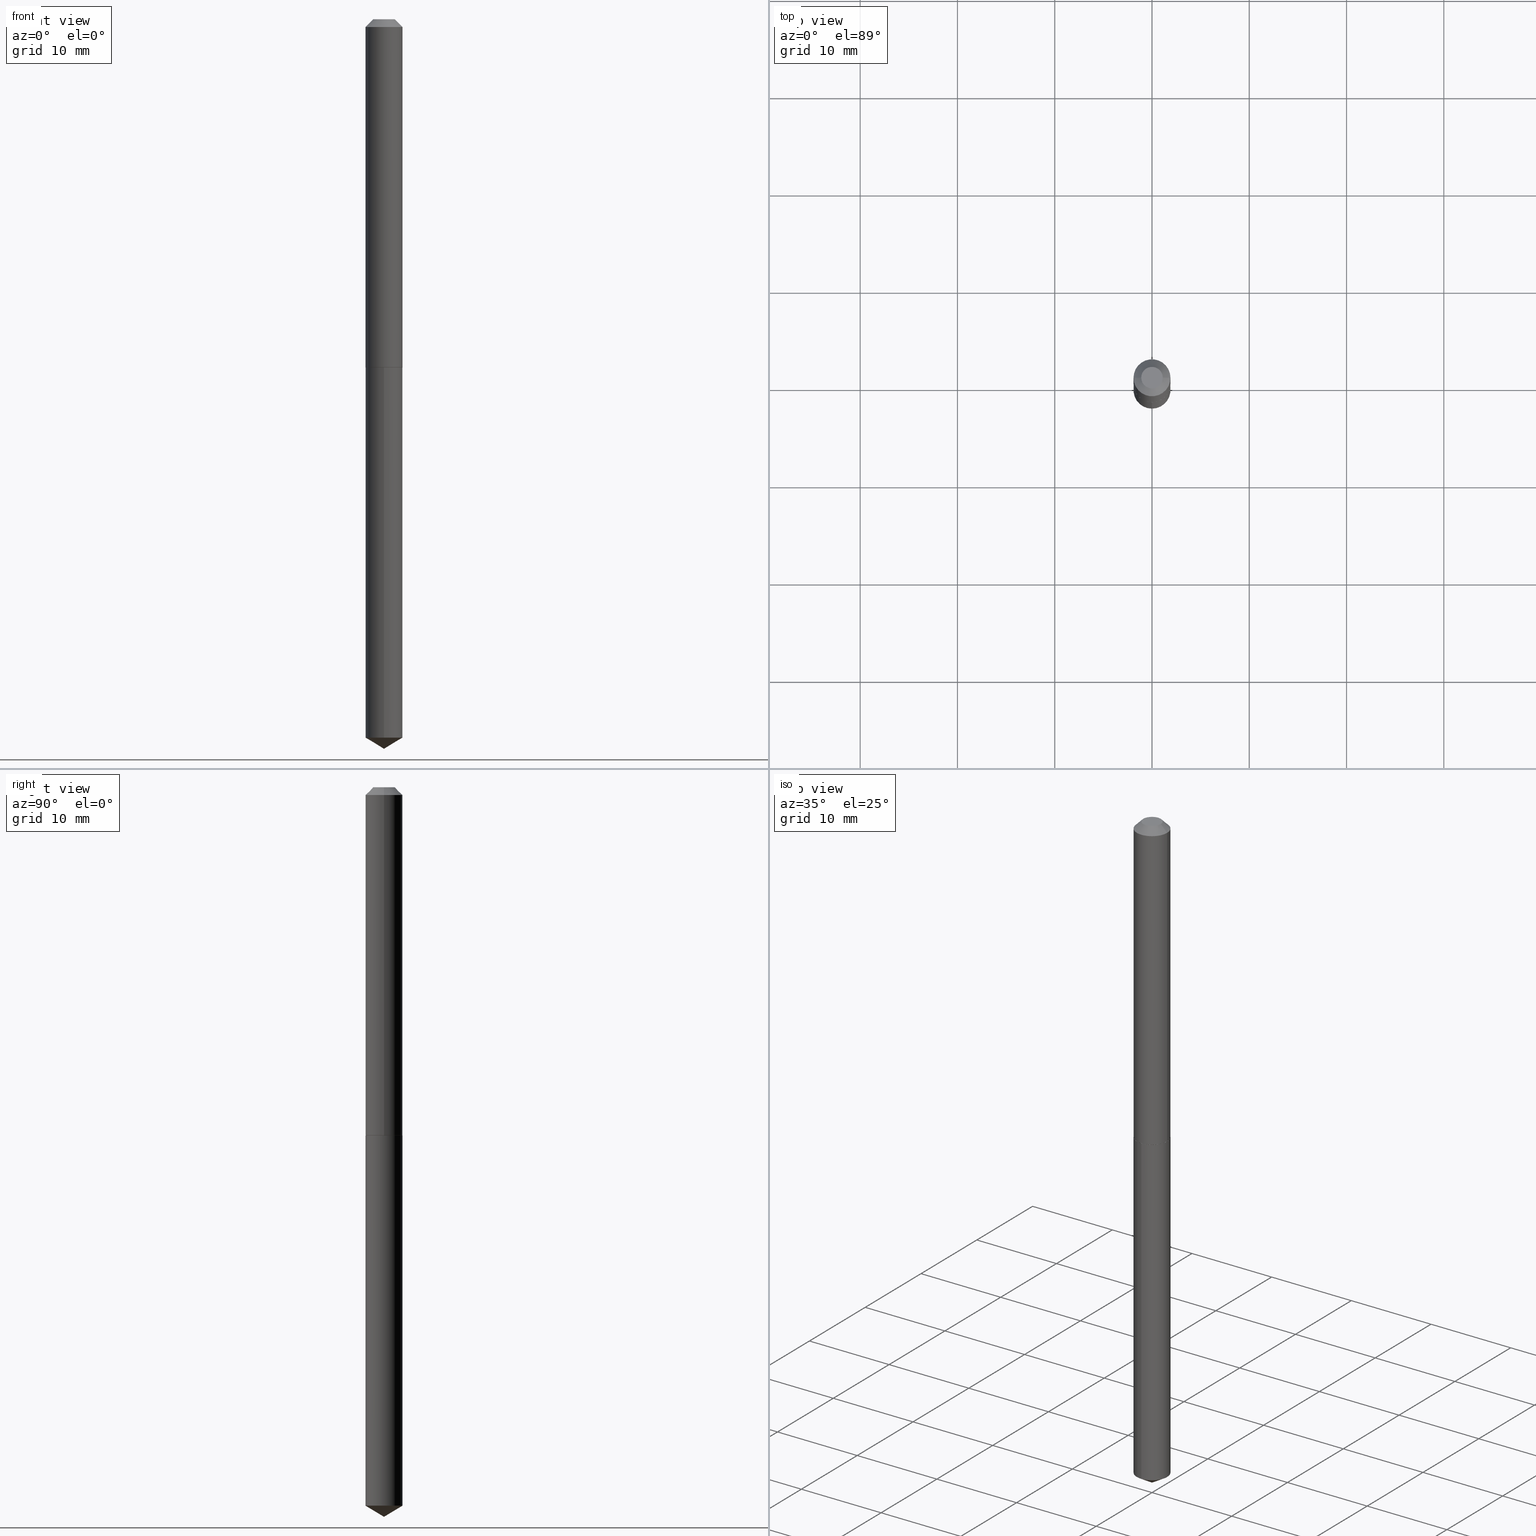
[diagram: canonical four-view strip — front | top / right | iso, engineering-drawing reading convention]
A machine part, canonical four-view strip (front | top / right | iso — engineering-drawing reading convention). The complete STEP part file that produces these views, byte-faithful:
ISO-10303-21;
HEADER;
FILE_DESCRIPTION (( 'STEP AP203' ),
    '1' );
FILE_NAME ('68316.STEP',
    '2024-04-23T13:04:07',
    ( '' ),
    ( '' ),
    'SwSTEP 2.0',
    'SolidWorks 2023',
    '' );
FILE_SCHEMA (( 'CONFIG_CONTROL_DESIGN' ));
ENDSEC;

DATA;
#1 = AXIS2_PLACEMENT_3D ( 'NONE', #231, #337, #36 ) ;
#2 = DIRECTION ( 'NONE',  ( 1.000000000000000000, -6.982962677686261189E-15, 0.000000000000000000 ) ) ;
#3 = CALENDAR_DATE ( 2024, 23, 4 ) ;
#4 = CC_DESIGN_PERSON_AND_ORGANIZATION_ASSIGNMENT ( #336, #65, ( #122 ) ) ;
#5 = APPROVAL_DATE_TIME ( #287, #225 ) ;
#6 = DIRECTION ( 'NONE',  ( -2.438088387897960049E-29, 3.491481338843145188E-15, 1.000000000000000000 ) ) ;
#7 = AXIS2_PLACEMENT_3D ( 'NONE', #224, #59, #183 ) ;
#8 = CARTESIAN_POINT ( 'NONE',  ( -5.839929314523175409E-48, 8.337871319499082469E-34, 2.388061258337334140E-19 ) ) ;
#9 = PERSON_AND_ORGANIZATION ( #260, #90 ) ;
#10 = DIRECTION ( 'NONE',  ( -2.445411313727211212E-29, 3.491563671315162485E-15, 1.000000000000000000 ) ) ;
#11 = DIRECTION ( 'NONE',  ( -6.982962677686265133E-15, -1.000000000000000000, 3.468864327941649829E-15 ) ) ;
#12 = AXIS2_PLACEMENT_3D ( 'NONE', #269, #222, #110 ) ;
#13 = EDGE_CURVE ( 'NONE', #242, #303, #137, .T. ) ;
#14 = EDGE_LOOP ( 'NONE', ( #376, #88, #118, #216 ) ) ;
#15 = CONICAL_SURFACE ( 'NONE', #12, 0.07480000000000018578, 0.7853981633971067744 ) ;
#16 = ADVANCED_FACE ( 'NONE', ( #292 ), #373, .T. ) ;
#17 = ORIENTED_EDGE ( 'NONE', *, *, #33, .T. ) ;
#18 = CARTESIAN_POINT ( 'NONE',  ( 0.000000000000000000, 0.000000000000000000, 0.000000000000000000 ) ) ;
#19 = EDGE_LOOP ( 'NONE', ( #299, #17, #344 ) ) ;
#20 = APPROVAL_ROLE ( '' ) ;
#21 = DIRECTION ( 'NONE',  ( -0.7071067811865452413, 2.468850131082233000E-15, -0.7071067811865497932 ) ) ;
#22 = VECTOR ( 'NONE', #21, 39.37007874015748143 ) ;
#23 = EDGE_LOOP ( 'NONE', ( #106, #44 ) ) ;
#24 = ADVANCED_FACE ( 'NONE', ( #259 ), #161, .T. ) ;
#25 = LINE ( 'NONE', #302, #331 ) ;
#26 = CARTESIAN_POINT ( 'NONE',  ( 0.07480000000000010252, -5.223256082909333921E-16, 3.647380228295364368E-30 ) ) ;
#27 = AXIS2_PLACEMENT_3D ( 'NONE', #289, #10, #11 ) ;
#28 = ADVANCED_FACE ( 'NONE', ( #165 ), #205, .T. ) ;
#29 = CONICAL_SURFACE ( 'NONE', #362, 0.07480000000000000537, 0.7853981633974450594 ) ;
#30 = SECURITY_CLASSIFICATION ( '', '', #194 ) ;
#31 = CARTESIAN_POINT ( 'NONE',  ( 7.642090019328601786E-31, -1.091087918388490144E-16, -0.03125000000000020123 ) ) ;
#32 = CARTESIAN_POINT ( 'NONE',  ( 7.110984081383565848E-29, -1.015284701649284259E-14, -2.907855625696737611 ) ) ;
#33 = EDGE_CURVE ( 'NONE', #149, #239, #335, .T. ) ;
#34 = CIRCLE ( 'NONE', #342, 0.07480000000000000537 ) ;
#35 = DIRECTION ( 'NONE',  ( -6.982962677686265922E-15, -1.000000000000000000, 3.652203200085913145E-15 ) ) ;
#36 = DIRECTION ( 'NONE',  ( -1.000000000000000000, 6.982962677686265922E-15, -4.876176775795935793E-29 ) ) ;
#37 = VERTEX_POINT ( 'NONE', #282 ) ;
#38 = ADVANCED_BREP_SHAPE_REPRESENTATION ( '68316', ( #136, #276, #221 ), #280 ) ;
#39 = APPROVAL ( #278, 'UNSPECIFIED' ) ;
#40 = CARTESIAN_POINT ( 'NONE',  ( 0.000000000000000000, 0.000000000000000000, 0.000000000000000000 ) ) ;
#41 = DIRECTION ( 'NONE',  ( -2.445468806185136597E-29, 3.491481338843145583E-15, 1.000000000000000000 ) ) ;
#42 = ADVANCED_FACE ( 'NONE', ( #365 ), #270, .T. ) ;
#43 = CIRCLE ( 'NONE', #317, 0.07480000000000018578 ) ;
#44 = ORIENTED_EDGE ( 'NONE', *, *, #354, .T. ) ;
#45 = EDGE_CURVE ( 'NONE', #303, #171, #43, .T. ) ;
#46 = DIRECTION ( 'NONE',  ( 1.000000000000000000, -6.982962677686271444E-15, 0.000000000000000000 ) ) ;
#47 = VERTEX_POINT ( 'NONE', #235 ) ;
#48 = CARTESIAN_POINT ( 'NONE',  ( -5.223256082908981892E-16, -0.07480000000000491811, -1.409499999999999309 ) ) ;
#49 =( NAMED_UNIT ( * ) PLANE_ANGLE_UNIT ( ) SI_UNIT ( $, .RADIAN. ) );
#50 = ORIENTED_EDGE ( 'NONE', *, *, #13, .F. ) ;
#51 = DIRECTION ( 'NONE',  ( -2.445468806185136877E-29, 3.491481338843145188E-15, 1.000000000000000000 ) ) ;
#52 = CARTESIAN_POINT ( 'NONE',  ( 0.07480000000000000537, -6.314344001297818025E-16, -0.03125000000000020123 ) ) ;
#53 = CARTESIAN_POINT ( 'NONE',  ( -5.223256082908615071E-16, -0.07480000000001012228, -2.907855625696737611 ) ) ;
#54 = EDGE_LOOP ( 'NONE', ( #151, #266, #79, #50 ) ) ;
#55 = DIRECTION ( 'NONE',  ( -2.445411313727211212E-29, 3.491563671315162485E-15, 1.000000000000000000 ) ) ;
#56 = CARTESIAN_POINT ( 'NONE',  ( 3.446888282317949867E-29, -4.921242947099413409E-15, -1.409499999999999753 ) ) ;
#57 = PERSON_AND_ORGANIZATION ( #260, #90 ) ;
#58 = CARTESIAN_POINT ( 'NONE',  ( 0.07430000000000035187, -5.440077074051504780E-15, -1.409499999999999753 ) ) ;
#59 = DIRECTION ( 'NONE',  ( 2.445411313727210371E-29, -3.491563671315162879E-15, -1.000000000000000000 ) ) ;
#60 = ADVANCED_FACE ( 'NONE', ( #134 ), #284, .F. ) ;
#61 = EDGE_LOOP ( 'NONE', ( #326, #267, #208 ) ) ;
#62 = CIRCLE ( 'NONE', #306, 0.07480000000000000537 ) ;
#63 = CARTESIAN_POINT ( 'NONE',  ( -5.223256082908982878E-16, -0.07480000000000491811, -1.409499999999999309 ) ) ;
#64 = DIRECTION ( 'NONE',  ( 1.000000000000000000, -6.982962677686261189E-15, 0.000000000000000000 ) ) ;
#65 = PERSON_AND_ORGANIZATION_ROLE ( 'creator' ) ;
#66 = DIRECTION ( 'NONE',  ( 1.000000000000000000, -6.982962677686265922E-15, 4.876176775795935232E-29 ) ) ;
#67 = PERSON_AND_ORGANIZATION_ROLE ( 'design_supplier' ) ;
#68 = ORIENTED_EDGE ( 'NONE', *, *, #95, .F. ) ;
#69 = LOCAL_TIME ( 9, 4, 7.000000000000000000, #339 ) ;
#70 = CARTESIAN_POINT ( 'NONE',  ( 0.07480000000000018578, -5.441822814720925495E-15, -1.408999999999999586 ) ) ;
#71 = CALENDAR_DATE ( 2024, 23, 4 ) ;
#72 = DIRECTION ( 'NONE',  ( 1.000000000000000000, -6.982962677686265922E-15, 4.876176775795935232E-29 ) ) ;
#73 = APPROVAL ( #159, 'UNSPECIFIED' ) ;
#74 = DIRECTION ( 'NONE',  ( 1.000000000000000000, -6.982962677686271444E-15, 0.000000000000000000 ) ) ;
#75 = PERSON_AND_ORGANIZATION_ROLE ( 'classification_officer' ) ;
#76 = VECTOR ( 'NONE', #308, 39.37007874015748143 ) ;
#77 = ADVANCED_FACE ( 'NONE', ( #131 ), #363, .T. ) ;
#78 = ORIENTED_EDGE ( 'NONE', *, *, #229, .F. ) ;
#79 = ORIENTED_EDGE ( 'NONE', *, *, #45, .F. ) ;
#80 = VECTOR ( 'NONE', #84, 39.37007874015748854 ) ;
#81 = DIRECTION ( 'NONE',  ( 2.445468806185136597E-29, -3.491481338843145583E-15, -1.000000000000000000 ) ) ;
#82 = CC_DESIGN_APPROVAL ( #39, ( #30 ) ) ;
#83 = EDGE_LOOP ( 'NONE', ( #219, #356, #347, #142 ) ) ;
#84 = DIRECTION ( 'NONE',  ( -5.985567269335916825E-15, -0.8571673007021067825, 0.5150380749100631483 ) ) ;
#85 = DATE_AND_TIME ( #112, #334 ) ;
#86 = CC_DESIGN_DATE_AND_TIME_ASSIGNMENT ( #381, #220, ( #30 ) ) ;
#87 = DIRECTION ( 'NONE',  ( -2.445468806185136597E-29, 3.491481338843145583E-15, 1.000000000000000000 ) ) ;
#88 = ORIENTED_EDGE ( 'NONE', *, *, #132, .T. ) ;
#89 = APPLICATION_CONTEXT ( 'configuration controlled 3d designs of mechanical parts and assemblies' ) ;
#90 = ORGANIZATION ( 'UNSPECIFIED', 'UNSPECIFIED', '' ) ;
#91 = CARTESIAN_POINT ( 'NONE',  ( 5.314859663485892927E-16, 0.07479999999999507876, -1.409499999999999753 ) ) ;
#92 = AXIS2_PLACEMENT_3D ( 'NONE', #31, #96, #158 ) ;
#93 = CARTESIAN_POINT ( 'NONE',  ( 3.446888282317949867E-29, -4.921242947099413409E-15, -1.409499999999999753 ) ) ;
#94 = DATE_AND_TIME ( #258, #209 ) ;
#95 = EDGE_CURVE ( 'NONE', #170, #242, #127, .T. ) ;
#96 = DIRECTION ( 'NONE',  ( 2.445468806185136597E-29, -3.491481338843145583E-15, -1.000000000000000000 ) ) ;
#97 = APPROVAL_STATUS ( 'not_yet_approved' ) ;
#98 = VECTOR ( 'NONE', #169, 39.37007874015748143 ) ;
#99 = VECTOR ( 'NONE', #371, 39.37007874015748143 ) ;
#100 = AXIS2_PLACEMENT_3D ( 'NONE', #154, #277, #388 ) ;
#101 = CARTESIAN_POINT ( 'NONE',  ( 3.446888282317949307E-29, -4.921242947099412620E-15, -1.409499999999999531 ) ) ;
#102 = EDGE_CURVE ( 'NONE', #109, #245, #34, .T. ) ;
#103 = LOCAL_TIME ( 9, 4, 7.000000000000000000, #223 ) ;
#104 = LINE ( 'NONE', #290, #99 ) ;
#105 = CARTESIAN_POINT ( 'NONE',  ( 3.446888282317949307E-29, -4.921242947099412620E-15, -1.409499999999999531 ) ) ;
#106 = ORIENTED_EDGE ( 'NONE', *, *, #153, .T. ) ;
#107 = VERTEX_POINT ( 'NONE', #262 ) ;
#108 = FACE_OUTER_BOUND ( 'NONE', #83, .T. ) ;
#109 = VERTEX_POINT ( 'NONE', #63 ) ;
#110 = DIRECTION ( 'NONE',  ( 1.000000000000000000, -6.982962677686271444E-15, 0.000000000000000000 ) ) ;
#111 = EDGE_CURVE ( 'NONE', #171, #47, #234, .T. ) ;
#112 = CALENDAR_DATE ( 2024, 23, 4 ) ;
#113 = AXIS2_PLACEMENT_3D ( 'NONE', #32, #285, #307 ) ;
#114 =( NAMED_UNIT ( * ) SI_UNIT ( $, .STERADIAN. ) SOLID_ANGLE_UNIT ( ) );
#115 = ORIENTED_EDGE ( 'NONE', *, *, #45, .T. ) ;
#116 = FACE_OUTER_BOUND ( 'NONE', #54, .T. ) ;
#117 = FACE_OUTER_BOUND ( 'NONE', #143, .T. ) ;
#118 = ORIENTED_EDGE ( 'NONE', *, *, #229, .T. ) ;
#119 = PLANE ( 'NONE',  #1 ) ;
#120 = EDGE_CURVE ( 'NONE', #246, #47, #62, .T. ) ;
#121 = VECTOR ( 'NONE', #51, 39.37007874015748143 ) ;
#122 = PRODUCT_DEFINITION_FORMATION_WITH_SPECIFIED_SOURCE ( 'ANY', '', #385, .NOT_KNOWN. ) ;
#123 = DESIGN_CONTEXT ( 'detailed design', #89, 'design' ) ;
#124 = DATE_AND_TIME ( #315, #69 ) ;
#125 = DIRECTION ( 'NONE',  ( -2.445468806185136597E-29, 3.491481338843145583E-15, 1.000000000000000000 ) ) ;
#126 = APPROVAL_ROLE ( '' ) ;
#127 = CIRCLE ( 'NONE', #241, 0.07430000000000035187 ) ;
#128 = DIRECTION ( 'NONE',  ( -2.445468806185136597E-29, 3.491481338843145583E-15, 1.000000000000000000 ) ) ;
#129 = PERSON_AND_ORGANIZATION ( #260, #90 ) ;
#130 = APPLICATION_PROTOCOL_DEFINITION ( 'international standard', 'config_control_design', 1994, #89 ) ;
#131 = FACE_OUTER_BOUND ( 'NONE', #179, .T. ) ;
#132 = EDGE_CURVE ( 'NONE', #239, #296, #368, .T. ) ;
#133 = CARTESIAN_POINT ( 'NONE',  ( 0.000000000000000000, 0.000000000000000000, 0.000000000000000000 ) ) ;
#134 = FACE_OUTER_BOUND ( 'NONE', #139, .T. ) ;
#135 = MECHANICAL_CONTEXT ( 'NONE', #355, 'mechanical' ) ;
#136 = MANIFOLD_SOLID_BREP ( 'Body-Move/Copy2[1]', #254 ) ;
#137 = LINE ( 'NONE', #70, #98 ) ;
#138 = DIMENSIONAL_EXPONENTS ( 1.000000000000000000, 0.000000000000000000, 0.000000000000000000, 0.000000000000000000, 0.000000000000000000, 0.000000000000000000, 0.000000000000000000 ) ;
#139 = EDGE_LOOP ( 'NONE', ( #196, #68 ) ) ;
#140 = AXIS2_PLACEMENT_3D ( 'NONE', #150, #55, #352 ) ;
#141 = FACE_OUTER_BOUND ( 'NONE', #323, .T. ) ;
#142 = ORIENTED_EDGE ( 'NONE', *, *, #188, .F. ) ;
#143 = EDGE_LOOP ( 'NONE', ( #166, #350, #305, #148 ) ) ;
#144 = CARTESIAN_POINT ( 'NONE',  ( -0.07480000000000000537, 4.132168164520837491E-16, -0.03125000000000020123 ) ) ;
#145 = CC_DESIGN_PERSON_AND_ORGANIZATION_ASSIGNMENT ( #9, #199, ( #346 ) ) ;
#146 = DIRECTION ( 'NONE',  ( -2.445468806185136597E-29, 3.491481338843145583E-15, 1.000000000000000000 ) ) ;
#147 = CARTESIAN_POINT ( 'NONE',  ( 7.642090019328601786E-31, -1.091087918388490144E-16, -0.03125000000000020123 ) ) ;
#148 = ORIENTED_EDGE ( 'NONE', *, *, #263, .T. ) ;
#149 = VERTEX_POINT ( 'NONE', #252 ) ;
#150 = CARTESIAN_POINT ( 'NONE',  ( 3.446888282317949307E-29, -4.921242947099412620E-15, -1.409499999999999531 ) ) ;
#151 = ORIENTED_EDGE ( 'NONE', *, *, #293, .T. ) ;
#152 = CYLINDRICAL_SURFACE ( 'NONE', #100, 0.07479999999999999150 ) ;
#153 = EDGE_CURVE ( 'NONE', #37, #107, #349, .T. ) ;
#154 = CARTESIAN_POINT ( 'NONE',  ( 3.446888282317949307E-29, -4.921242947099412620E-15, -1.409499999999999531 ) ) ;
#155 = AXIS2_PLACEMENT_3D ( 'NONE', #163, #264, #286 ) ;
#156 = AXIS2_PLACEMENT_3D ( 'NONE', #274, #87, #377 ) ;
#157 = CC_DESIGN_PERSON_AND_ORGANIZATION_ASSIGNMENT ( #311, #75, ( #30 ) ) ;
#158 = DIRECTION ( 'NONE',  ( -1.000000000000000000, 6.982962677686266711E-15, 0.000000000000000000 ) ) ;
#159 = APPROVAL_STATUS ( 'not_yet_approved' ) ;
#160 = CARTESIAN_POINT ( 'NONE',  ( 3.445665547914856505E-29, -4.919497206429991117E-15, -1.408999999999999586 ) ) ;
#161 = CYLINDRICAL_SURFACE ( 'NONE', #382, 0.07480000000000010252 ) ;
#162 = DIRECTION ( 'NONE',  ( 6.090539988449753981E-15, 0.8571673007021103352, 0.5150380749100572642 ) ) ;
#163 = CARTESIAN_POINT ( 'NONE',  ( -8.905514441071909867E-28, 1.271533635049111924E-13, 36.41727874015747801 ) ) ;
#164 = ADVANCED_FACE ( 'NONE', ( #108 ), #207, .T. ) ;
#165 = FACE_OUTER_BOUND ( 'NONE', #61, .T. ) ;
#166 = ORIENTED_EDGE ( 'NONE', *, *, #173, .F. ) ;
#167 = DIRECTION ( 'NONE',  ( 1.000000000000000000, -6.982962677686265922E-15, 4.876176775795935793E-29 ) ) ;
#168 = AXIS2_PLACEMENT_3D ( 'NONE', #291, #320, #46 ) ;
#169 = DIRECTION ( 'NONE',  ( 0.7071067811863059882, -2.468850131079726789E-15, 0.7071067811867890462 ) ) ;
#170 = VERTEX_POINT ( 'NONE', #203 ) ;
#171 = VERTEX_POINT ( 'NONE', #200 ) ;
#172 = CIRCLE ( 'NONE', #168, 0.07480000000000018578 ) ;
#173 = EDGE_CURVE ( 'NONE', #107, #246, #104, .T. ) ;
#174 =( LENGTH_UNIT ( ) NAMED_UNIT ( * ) SI_UNIT ( $, .METRE. ) );
#175 = ORIENTED_EDGE ( 'NONE', *, *, #366, .T. ) ;
#176 = CARTESIAN_POINT ( 'NONE',  ( -5.839929314523175409E-48, 8.337871319499082469E-34, 2.388061258337334140E-19 ) ) ;
#177 = ORIENTED_EDGE ( 'NONE', *, *, #111, .F. ) ;
#178 = LINE ( 'NONE', #144, #22 ) ;
#179 = EDGE_LOOP ( 'NONE', ( #115, #294, #386, #384 ) ) ;
#180 = DIRECTION ( 'NONE',  ( -6.982962677686265922E-15, -1.000000000000000000, 3.652203200085913145E-15 ) ) ;
#181 = LENGTH_MEASURE_WITH_UNIT ( LENGTH_MEASURE( 0.02539999999999999897 ), #174 );
#182 = ORIENTED_EDGE ( 'NONE', *, *, #313, .T. ) ;
#183 = DIRECTION ( 'NONE',  ( 6.982962677686265922E-15, 1.000000000000000000, -3.491563671315162879E-15 ) ) ;
#184 = VECTOR ( 'NONE', #191, 39.37007874015748143 ) ;
#185 = DIRECTION ( 'NONE',  ( -0.7071067811863059882, 7.493145998869481680E-15, 0.7071067811867890462 ) ) ;
#186 = DIRECTION ( 'NONE',  ( -2.445468806185136597E-29, 3.491481338843145583E-15, 1.000000000000000000 ) ) ;
#187 = AXIS2_PLACEMENT_3D ( 'NONE', #212, #327, #300 ) ;
#188 = EDGE_CURVE ( 'NONE', #171, #303, #172, .T. ) ;
#189 = CARTESIAN_POINT ( 'NONE',  ( -0.07480000000000010252, 5.314859663485556675E-16, -3.679363447510674285E-30 ) ) ;
#190 = PERSON_AND_ORGANIZATION ( #260, #90 ) ;
#191 = DIRECTION ( 'NONE',  ( -2.445468806185136877E-29, 3.491481338843145188E-15, 1.000000000000000000 ) ) ;
#192 = CARTESIAN_POINT ( 'NONE',  ( 7.220974019586055453E-29, -1.030965711342079523E-14, -2.952799999999999869 ) ) ;
#193 = ADVANCED_FACE ( 'NONE', ( #141 ), #324, .T. ) ;
#194 = SECURITY_CLASSIFICATION_LEVEL ( 'unclassified' ) ;
#195 = DIRECTION ( 'NONE',  ( 1.000000000000000000, 0.000000000000000000, 0.000000000000000000 ) ) ;
#196 = ORIENTED_EDGE ( 'NONE', *, *, #293, .F. ) ;
#197 = AXIS2_PLACEMENT_3D ( 'NONE', #176, #146, #351 ) ;
#198 = CARTESIAN_POINT ( 'NONE',  ( 7.642090019328601786E-31, -1.091087918388490144E-16, -0.03125000000000020123 ) ) ;
#199 = PERSON_AND_ORGANIZATION_ROLE ( 'creator' ) ;
#200 = CARTESIAN_POINT ( 'NONE',  ( -0.07480000000000018578, -4.388011240081434759E-15, -1.408999999999999586 ) ) ;
#201 = AXIS2_PLACEMENT_3D ( 'NONE', #230, #6, #167 ) ;
#202 = ORIENTED_EDGE ( 'NONE', *, *, #173, .T. ) ;
#203 = CARTESIAN_POINT ( 'NONE',  ( -0.07430000000000035187, -4.390660467255545171E-15, -1.409499999999999753 ) ) ;
#204 = ADVANCED_FACE ( 'NONE', ( #117 ), #29, .T. ) ;
#205 = CONICAL_SURFACE ( 'NONE', #27, 65.52281426576737999, 1.029744258676647428 ) ;
#206 =( CONVERSION_BASED_UNIT ( 'INCH', #181 ) LENGTH_UNIT ( ) NAMED_UNIT ( #138 ) );
#207 = CONICAL_SURFACE ( 'NONE', #226, 0.07480000000000018578, 0.7853981633971067744 ) ;
#208 = ORIENTED_EDGE ( 'NONE', *, *, #132, .F. ) ;
#209 = LOCAL_TIME ( 9, 4, 7.000000000000000000, #253 ) ;
#210 = DIRECTION ( 'NONE',  ( -2.445411313727211212E-29, 3.491563671315162485E-15, 1.000000000000000000 ) ) ;
#211 = ORIENTED_EDGE ( 'NONE', *, *, #188, .T. ) ;
#212 = CARTESIAN_POINT ( 'NONE',  ( 7.110984081383565848E-29, -1.015284701649284259E-14, -2.907855625696737611 ) ) ;
#213 = APPROVAL_DATE_TIME ( #85, #39 ) ;
#214 = ORIENTED_EDGE ( 'NONE', *, *, #102, .F. ) ;
#215 = LINE ( 'NONE', #48, #340 ) ;
#216 = ORIENTED_EDGE ( 'NONE', *, *, #218, .F. ) ;
#217 = CARTESIAN_POINT ( 'NONE',  ( 7.220810527173708163E-29, -1.030988920865940832E-14, -2.952799999999999869 ) ) ;
#218 = EDGE_CURVE ( 'NONE', #245, #109, #261, .T. ) ;
#219 = ORIENTED_EDGE ( 'NONE', *, *, #238, .F. ) ;
#220 = DATE_TIME_ROLE ( 'classification_date' ) ;
#221 = AXIS2_PLACEMENT_3D ( 'NONE', #18, #333, #195 ) ;
#222 = DIRECTION ( 'NONE',  ( -2.445468806185136597E-29, 3.491481338843145583E-15, 1.000000000000000000 ) ) ;
#223 = COORDINATED_UNIVERSAL_TIME_OFFSET ( 5, 0, .BEHIND. ) ;
#224 = CARTESIAN_POINT ( 'NONE',  ( 3.446888282317949307E-29, -4.921242947099412620E-15, -1.409499999999999531 ) ) ;
#225 = APPROVAL ( #97, 'UNSPECIFIED' ) ;
#226 = AXIS2_PLACEMENT_3D ( 'NONE', #343, #319, #74 ) ;
#227 = DIRECTION ( 'NONE',  ( -2.445468806185136597E-29, 3.491481338843145583E-15, 1.000000000000000000 ) ) ;
#228 = APPROVAL_DATE_TIME ( #94, #73 ) ;
#229 = EDGE_CURVE ( 'NONE', #296, #109, #215, .T. ) ;
#230 = CARTESIAN_POINT ( 'NONE',  ( 3.446888282317949867E-29, -4.921242947099413409E-15, -1.409499999999999753 ) ) ;
#231 = CARTESIAN_POINT ( 'NONE',  ( -2.919964657261587705E-48, 4.168935659749541235E-34, 1.194030629168667070E-19 ) ) ;
#232 = COORDINATED_UNIVERSAL_TIME_OFFSET ( 5, 0, .BEHIND. ) ;
#233 = AXIS2_PLACEMENT_3D ( 'NONE', #56, #186, #2 ) ;
#234 = LINE ( 'NONE', #189, #184 ) ;
#235 = CARTESIAN_POINT ( 'NONE',  ( -0.07480000000000000537, -1.982817032785863356E-15, -0.03125000000000020123 ) ) ;
#236 = CC_DESIGN_DATE_AND_TIME_ASSIGNMENT ( #124, #359, ( #346 ) ) ;
#237 = CIRCLE ( 'NONE', #197, 0.04355000000000000537 ) ;
#238 = EDGE_CURVE ( 'NONE', #170, #171, #25, .T. ) ;
#239 = VERTEX_POINT ( 'NONE', #329 ) ;
#240 = ORIENTED_EDGE ( 'NONE', *, *, #249, .F. ) ;
#241 = AXIS2_PLACEMENT_3D ( 'NONE', #93, #227, #64 ) ;
#242 = VERTEX_POINT ( 'NONE', #58 ) ;
#243 = APPROVAL_PERSON_ORGANIZATION ( #190, #73, #126 ) ;
#244 = LINE ( 'NONE', #217, #80 ) ;
#245 = VERTEX_POINT ( 'NONE', #297 ) ;
#246 = VERTEX_POINT ( 'NONE', #52 ) ;
#247 = CC_DESIGN_APPROVAL ( #225, ( #346 ) ) ;
#248 = PLANE ( 'NONE',  #7 ) ;
#249 = EDGE_CURVE ( 'NONE', #37, #47, #178, .T. ) ;
#250 = ORIENTED_EDGE ( 'NONE', *, *, #102, .T. ) ;
#251 = LINE ( 'NONE', #91, #76 ) ;
#252 = CARTESIAN_POINT ( 'NONE',  ( 7.220810527173708163E-29, -1.030988920865940832E-14, -2.952799999999999869 ) ) ;
#253 = COORDINATED_UNIVERSAL_TIME_OFFSET ( 5, 0, .BEHIND. ) ;
#254 = CLOSED_SHELL ( 'NONE', ( #193, #16, #28, #372, #288 ) ) ;
#255 = CIRCLE ( 'NONE', #156, 0.07480000000000000537 ) ;
#256 = DIRECTION ( 'NONE',  ( 1.000000000000000000, -6.982962677686265922E-15, 4.876178871365119534E-29 ) ) ;
#257 = PERSON_AND_ORGANIZATION ( #260, #90 ) ;
#258 = CALENDAR_DATE ( 2024, 23, 4 ) ;
#259 = FACE_OUTER_BOUND ( 'NONE', #375, .T. ) ;
#260 = PERSON ( 'UNSPECIFIED', 'UNSPECIFIED', 'UNSPECIFIED', ('UNSPECIFIED'), ('UNSPECIFIED'), ('UNSPECIFIED') ) ;
#261 = CIRCLE ( 'NONE', #318, 0.07480000000000000537 ) ;
#262 = CARTESIAN_POINT ( 'NONE',  ( 0.04355000000000000537, -4.605243649375549933E-16, 2.388061258364063159E-19 ) ) ;
#263 = EDGE_CURVE ( 'NONE', #47, #246, #255, .T. ) ;
#264 = DIRECTION ( 'NONE',  ( -2.445411313727211212E-29, 3.491563671315162485E-15, 1.000000000000000000 ) ) ;
#265 = ADVANCED_FACE ( 'NONE', ( #387 ), #119, .F. ) ;
#266 = ORIENTED_EDGE ( 'NONE', *, *, #238, .T. ) ;
#267 = ORIENTED_EDGE ( 'NONE', *, *, #360, .T. ) ;
#268 = ORIENTED_EDGE ( 'NONE', *, *, #218, .T. ) ;
#269 = CARTESIAN_POINT ( 'NONE',  ( 3.445665547914856505E-29, -4.919497206429991117E-15, -1.408999999999999586 ) ) ;
#270 = CONICAL_SURFACE ( 'NONE', #92, 0.07480000000000000537, 0.7853981633974450594 ) ;
#271 = AXIS2_PLACEMENT_3D ( 'NONE', #8, #128, #256 ) ;
#272 = ORIENTED_EDGE ( 'NONE', *, *, #263, .F. ) ;
#273 = LINE ( 'NONE', #26, #121 ) ;
#274 = CARTESIAN_POINT ( 'NONE',  ( 7.642090019328601786E-31, -1.091087918388490144E-16, -0.03125000000000020123 ) ) ;
#275 = ORIENTED_EDGE ( 'NONE', *, *, #120, .T. ) ;
#276 = MANIFOLD_SOLID_BREP ( 'Body-Move/Copy2[2]', #390 ) ;
#277 = DIRECTION ( 'NONE',  ( -2.445411313727211212E-29, 3.491563671315162485E-15, 1.000000000000000000 ) ) ;
#278 = APPROVAL_STATUS ( 'not_yet_approved' ) ;
#279 = EDGE_CURVE ( 'NONE', #239, #245, #251, .T. ) ;
#280 =( GEOMETRIC_REPRESENTATION_CONTEXT ( 3 ) GLOBAL_UNCERTAINTY_ASSIGNED_CONTEXT ( ( #378 ) ) GLOBAL_UNIT_ASSIGNED_CONTEXT ( ( #206, #49, #114 ) ) REPRESENTATION_CONTEXT ( 'NONE', 'WORKASPACE' ) );
#281 = EDGE_LOOP ( 'NONE', ( #250, #268 ) ) ;
#282 = CARTESIAN_POINT ( 'NONE',  ( -0.04355000000000000537, 3.586624205326602835E-16, 2.388061258314161351E-19 ) ) ;
#283 = FACE_OUTER_BOUND ( 'NONE', #281, .T. ) ;
#284 = PLANE ( 'NONE',  #201 ) ;
#285 = DIRECTION ( 'NONE',  ( -2.445411313727211212E-29, 3.491563671315162485E-15, 1.000000000000000000 ) ) ;
#286 = DIRECTION ( 'NONE',  ( -6.982962677686265133E-15, -1.000000000000000000, 3.468864327941649829E-15 ) ) ;
#287 = DATE_AND_TIME ( #71, #357 ) ;
#288 = ADVANCED_FACE ( 'NONE', ( #283 ), #248, .F. ) ;
#289 = CARTESIAN_POINT ( 'NONE',  ( -8.905514441071909867E-28, 1.271533635049111924E-13, 36.41727874015747801 ) ) ;
#290 = CARTESIAN_POINT ( 'NONE',  ( 0.07480000000000000537, -6.222740420721597243E-16, -0.03125000000000020123 ) ) ;
#291 = CARTESIAN_POINT ( 'NONE',  ( 3.445665547914856505E-29, -4.919497206429991117E-15, -1.408999999999999586 ) ) ;
#292 = FACE_OUTER_BOUND ( 'NONE', #19, .T. ) ;
#293 = EDGE_CURVE ( 'NONE', #242, #170, #295, .T. ) ;
#294 = ORIENTED_EDGE ( 'NONE', *, *, #111, .T. ) ;
#295 = CIRCLE ( 'NONE', #233, 0.07430000000000035187 ) ;
#296 = VERTEX_POINT ( 'NONE', #53 ) ;
#297 = CARTESIAN_POINT ( 'NONE',  ( 5.314859663486262705E-16, 0.07479999999999509264, -1.409499999999999753 ) ) ;
#298 = CC_DESIGN_PERSON_AND_ORGANIZATION_ASSIGNMENT ( #369, #364, ( #385 ) ) ;
#299 = ORIENTED_EDGE ( 'NONE', *, *, #360, .F. ) ;
#300 = DIRECTION ( 'NONE',  ( -6.982962677686265922E-15, -1.000000000000000000, 0.000000000000000000 ) ) ;
#301 = PRODUCT_DEFINITION_SHAPE ( 'NONE', 'NONE',  #346 ) ;
#302 = CARTESIAN_POINT ( 'NONE',  ( -0.07480000000000018578, -4.388011240081434759E-15, -1.408999999999999586 ) ) ;
#303 = VERTEX_POINT ( 'NONE', #380 ) ;
#304 = CC_DESIGN_APPROVAL ( #73, ( #122 ) ) ;
#305 = ORIENTED_EDGE ( 'NONE', *, *, #249, .T. ) ;
#306 = AXIS2_PLACEMENT_3D ( 'NONE', #198, #125, #341 ) ;
#307 = DIRECTION ( 'NONE',  ( -6.982962677686265922E-15, -1.000000000000000000, 0.000000000000000000 ) ) ;
#308 = DIRECTION ( 'NONE',  ( -2.445411313727210932E-29, 3.491563671315162879E-15, 1.000000000000000000 ) ) ;
#309 = DIRECTION ( 'NONE',  ( -2.445411313727211212E-29, 3.491563671315162485E-15, 1.000000000000000000 ) ) ;
#310 = DIRECTION ( 'NONE',  ( -2.445468806185136597E-29, 3.491481338843145583E-15, 1.000000000000000000 ) ) ;
#311 = PERSON_AND_ORGANIZATION ( #260, #90 ) ;
#312 = APPROVAL_PERSON_ORGANIZATION ( #257, #225, #338 ) ;
#313 = EDGE_CURVE ( 'NONE', #303, #246, #273, .T. ) ;
#314 = DIRECTION ( 'NONE',  ( -2.445468806185136597E-29, 3.491481338843145583E-15, 1.000000000000000000 ) ) ;
#315 = CALENDAR_DATE ( 2024, 23, 4 ) ;
#316 = APPLICATION_PROTOCOL_DEFINITION ( 'international standard', 'config_control_design', 1994, #355 ) ;
#317 = AXIS2_PLACEMENT_3D ( 'NONE', #160, #314, #367 ) ;
#318 = AXIS2_PLACEMENT_3D ( 'NONE', #105, #210, #180 ) ;
#319 = DIRECTION ( 'NONE',  ( -2.445468806185136597E-29, 3.491481338843145583E-15, 1.000000000000000000 ) ) ;
#320 = DIRECTION ( 'NONE',  ( -2.445468806185136597E-29, 3.491481338843145583E-15, 1.000000000000000000 ) ) ;
#321 = ORIENTED_EDGE ( 'NONE', *, *, #279, .T. ) ;
#322 = APPROVAL_PERSON_ORGANIZATION ( #57, #39, #20 ) ;
#323 = EDGE_LOOP ( 'NONE', ( #175, #321, #214, #78 ) ) ;
#324 = CYLINDRICAL_SURFACE ( 'NONE', #140, 0.07479999999999999150 ) ;
#325 = CC_DESIGN_PERSON_AND_ORGANIZATION_ASSIGNMENT ( #129, #67, ( #122 ) ) ;
#326 = ORIENTED_EDGE ( 'NONE', *, *, #33, .F. ) ;
#327 = DIRECTION ( 'NONE',  ( -2.445411313727211212E-29, 3.491563671315162485E-15, 1.000000000000000000 ) ) ;
#328 = SHAPE_DEFINITION_REPRESENTATION ( #301, #38 ) ;
#329 = CARTESIAN_POINT ( 'NONE',  ( 5.314859663486257775E-16, 0.07479999999998983296, -2.907855625696737611 ) ) ;
#330 = FACE_OUTER_BOUND ( 'NONE', #14, .T. ) ;
#331 = VECTOR ( 'NONE', #185, 39.37007874015748143 ) ;
#332 = ADVANCED_FACE ( 'NONE', ( #116 ), #15, .T. ) ;
#333 = DIRECTION ( 'NONE',  ( 0.000000000000000000, 0.000000000000000000, 1.000000000000000000 ) ) ;
#334 = LOCAL_TIME ( 9, 4, 7.000000000000000000, #389 ) ;
#335 = LINE ( 'NONE', #192, #361 ) ;
#336 = PERSON_AND_ORGANIZATION ( #260, #90 ) ;
#337 = DIRECTION ( 'NONE',  ( 2.438088387897960049E-29, -3.491481338843145188E-15, -1.000000000000000000 ) ) ;
#338 = APPROVAL_ROLE ( '' ) ;
#339 = COORDINATED_UNIVERSAL_TIME_OFFSET ( 5, 0, .BEHIND. ) ;
#340 = VECTOR ( 'NONE', #353, 39.37007874015748143 ) ;
#341 = DIRECTION ( 'NONE',  ( 1.000000000000000000, -6.982962677686266711E-15, 0.000000000000000000 ) ) ;
#342 = AXIS2_PLACEMENT_3D ( 'NONE', #101, #309, #35 ) ;
#343 = CARTESIAN_POINT ( 'NONE',  ( 3.445665547914856505E-29, -4.919497206429991117E-15, -1.408999999999999586 ) ) ;
#344 = ORIENTED_EDGE ( 'NONE', *, *, #366, .F. ) ;
#345 = ORIENTED_EDGE ( 'NONE', *, *, #354, .F. ) ;
#346 = PRODUCT_DEFINITION ( 'UNKNOWN', '', #122, #123 ) ;
#347 = ORIENTED_EDGE ( 'NONE', *, *, #13, .T. ) ;
#348 = DIRECTION ( 'NONE',  ( -1.000000000000000000, 6.982962677686266711E-15, 0.000000000000000000 ) ) ;
#349 = CIRCLE ( 'NONE', #271, 0.04355000000000000537 ) ;
#350 = ORIENTED_EDGE ( 'NONE', *, *, #153, .F. ) ;
#351 = DIRECTION ( 'NONE',  ( 1.000000000000000000, -6.982962677686265922E-15, 4.876178871365119534E-29 ) ) ;
#352 = DIRECTION ( 'NONE',  ( -6.982962677686265922E-15, -1.000000000000000000, 3.652203200085913934E-15 ) ) ;
#353 = DIRECTION ( 'NONE',  ( -2.445411313727210932E-29, 3.491563671315162879E-15, 1.000000000000000000 ) ) ;
#354 = EDGE_CURVE ( 'NONE', #107, #37, #237, .T. ) ;
#355 = APPLICATION_CONTEXT ( 'configuration controlled 3d designs of mechanical parts and assemblies' ) ;
#356 = ORIENTED_EDGE ( 'NONE', *, *, #95, .T. ) ;
#357 = LOCAL_TIME ( 9, 4, 7.000000000000000000, #232 ) ;
#358 = PRODUCT_RELATED_PRODUCT_CATEGORY ( 'detail', '', ( #385 ) ) ;
#359 = DATE_TIME_ROLE ( 'creation_date' ) ;
#360 = EDGE_CURVE ( 'NONE', #149, #296, #244, .T. ) ;
#361 = VECTOR ( 'NONE', #162, 39.37007874015748143 ) ;
#362 = AXIS2_PLACEMENT_3D ( 'NONE', #147, #81, #348 ) ;
#363 = CYLINDRICAL_SURFACE ( 'NONE', #383, 0.07480000000000010252 ) ;
#364 = PERSON_AND_ORGANIZATION_ROLE ( 'design_owner' ) ;
#365 = FACE_OUTER_BOUND ( 'NONE', #379, .T. ) ;
#366 = EDGE_CURVE ( 'NONE', #296, #239, #374, .T. ) ;
#367 = DIRECTION ( 'NONE',  ( 1.000000000000000000, -6.982962677686271444E-15, 0.000000000000000000 ) ) ;
#368 = CIRCLE ( 'NONE', #113, 0.07479999999999999150 ) ;
#369 = PERSON_AND_ORGANIZATION ( #260, #90 ) ;
#370 = CC_DESIGN_SECURITY_CLASSIFICATION ( #30, ( #122 ) ) ;
#371 = DIRECTION ( 'NONE',  ( 0.7071067811865452413, -7.319954787623248157E-15, -0.7071067811865497932 ) ) ;
#372 = ADVANCED_FACE ( 'NONE', ( #330 ), #152, .T. ) ;
#373 = CONICAL_SURFACE ( 'NONE', #155, 65.52281426576737999, 1.029744258676647428 ) ;
#374 = CIRCLE ( 'NONE', #187, 0.07479999999999999150 ) ;
#375 = EDGE_LOOP ( 'NONE', ( #177, #211, #182, #272 ) ) ;
#376 = ORIENTED_EDGE ( 'NONE', *, *, #279, .F. ) ;
#377 = DIRECTION ( 'NONE',  ( 1.000000000000000000, -6.982962677686266711E-15, 0.000000000000000000 ) ) ;
#378 = UNCERTAINTY_MEASURE_WITH_UNIT (LENGTH_MEASURE( 1.000000000000000082E-05 ), #206, 'distance_accuracy_value', 'NONE');
#379 = EDGE_LOOP ( 'NONE', ( #345, #202, #275, #240 ) ) ;
#380 = CARTESIAN_POINT ( 'NONE',  ( 0.07480000000000018578, -5.441822814720925495E-15, -1.408999999999999586 ) ) ;
#381 = DATE_AND_TIME ( #3, #103 ) ;
#382 = AXIS2_PLACEMENT_3D ( 'NONE', #40, #41, #66 ) ;
#383 = AXIS2_PLACEMENT_3D ( 'NONE', #133, #310, #72 ) ;
#384 = ORIENTED_EDGE ( 'NONE', *, *, #313, .F. ) ;
#385 = PRODUCT ( '68316', '68316', '', ( #135 ) ) ;
#386 = ORIENTED_EDGE ( 'NONE', *, *, #120, .F. ) ;
#387 = FACE_OUTER_BOUND ( 'NONE', #23, .T. ) ;
#388 = DIRECTION ( 'NONE',  ( -6.982962677686265922E-15, -1.000000000000000000, 3.652203200085913934E-15 ) ) ;
#389 = COORDINATED_UNIVERSAL_TIME_OFFSET ( 5, 0, .BEHIND. ) ;
#390 = CLOSED_SHELL ( 'NONE', ( #42, #77, #332, #60, #164, #24, #204, #265 ) ) ;
ENDSEC;
END-ISO-10303-21;
